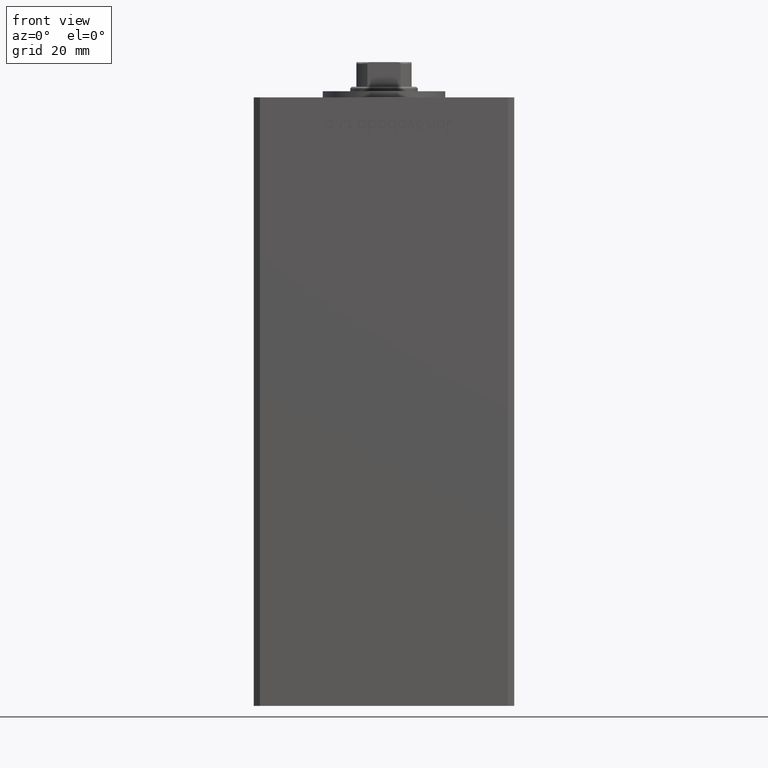
[diagram: clean part render]
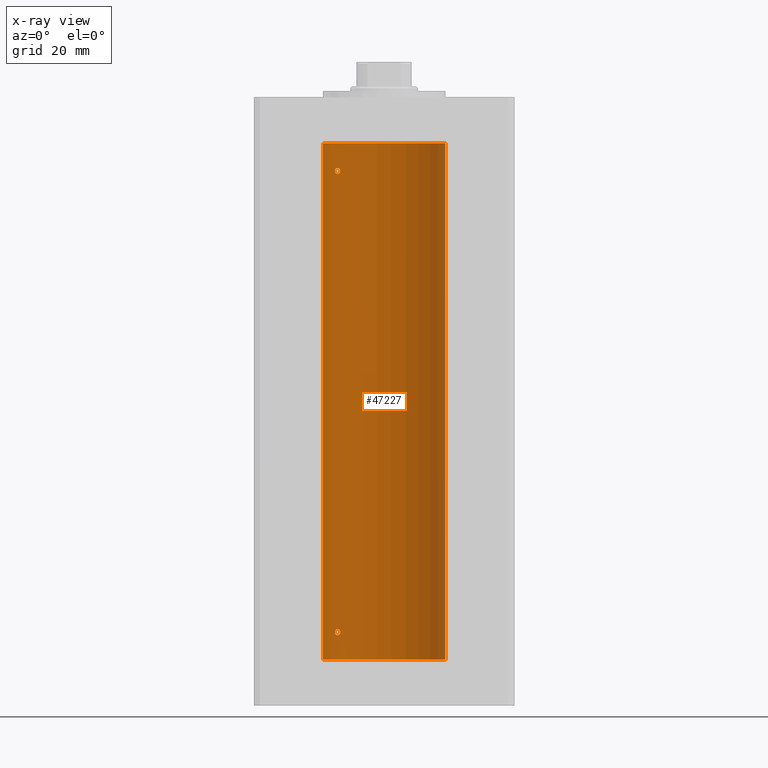
[diagram: x-ray — body ghosted, one internal face saturated and labeled with its STEP entity id]
A machine part, front view, then the same camera in x-ray: the body is ghosted and one INTERNAL B-rep face — a face not visible from any outside direction — is saturated and labeled: STEP entity #47227.
In plain terms, the highlighted cylindrical surface (partial cylindrical patch) has radius 20 mm, axis along (-0, -0, -1).
Its self-contained STEP definition (entity closure, byte-faithful):
#112 = CARTESIAN_POINT ( 'NONE',  ( -15.65267653428113093, 12.45028749062556450, 9.845491151963429388 ) ) ;
#373 = CARTESIAN_POINT ( 'NONE',  ( -14.98188199575990254, 13.25008090651449244, 9.975236402857756701 ) ) ;
#681 = CARTESIAN_POINT ( 'NONE',  ( -14.98166541227928583, 13.25033217142395792, 158.5247696149142485 ) ) ;
#940 = CARTESIAN_POINT ( 'NONE',  ( -15.08054978948642955, 13.13774395934156658, 158.5027765441529937 ) ) ;
#1132 = CARTESIAN_POINT ( 'NONE',  ( -15.99999999999999645, 12.00000000000000711, 159.5000000000000000 ) ) ;
#1636 = VERTEX_POINT ( 'NONE', #30014 ) ;
#2141 = CARTESIAN_POINT ( 'NONE',  ( -14.28285685708538111, 14.00000000000032685, 159.4999999999998579 ) ) ;
#2191 = DIRECTION ( 'NONE',  ( 1.000000000000000000, 0.000000000000000000, 0.000000000000000000 ) ) ;
#2585 = CARTESIAN_POINT ( 'NONE',  ( -15.99999999999999645, 12.00000000000000533, 9.000000000000001776 ) ) ;
#2831 = CARTESIAN_POINT ( 'NONE',  ( -14.43642497935765512, 13.84184969151371547, 8.442053335922926394 ) ) ;
#2962 = CARTESIAN_POINT ( 'NONE',  ( -15.99999999999999645, 12.00000000000001421, 159.6542407199935667 ) ) ;
#3091 = CARTESIAN_POINT ( 'NONE',  ( -14.28285685708537756, 14.00000000000032863, 8.999999999999852562 ) ) ;
#3220 = CARTESIAN_POINT ( 'NONE',  ( -15.65267653428112382, 12.45028749062557161, 160.3454911519634720 ) ) ;
#3563 = CARTESIAN_POINT ( 'NONE',  ( -16.00000000000000355, 12.00000000000000888, 9.154240719993492092 ) ) ;
#4396 = CARTESIAN_POINT ( 'NONE',  ( -15.57359523075762198, 12.55100654799543314, 158.5686142754107379 ) ) ;
#4440 = ORIENTED_EDGE ( 'NONE', *, *, #20283, .F. ) ;
#4608 = CARTESIAN_POINT ( 'NONE',  ( -14.28285685708573460, 14.00000000000003020, 9.152512609665841126 ) ) ;
#4656 = CARTESIAN_POINT ( 'NONE',  ( -15.37869471769012009, 12.79018928545119849, 158.4951659137117588 ) ) ;
#5198 = VERTEX_POINT ( 'NONE', #26572 ) ;
#5422 = CARTESIAN_POINT ( 'NONE',  ( -14.43642497935765512, 13.84184969151371902, 158.9420533359229353 ) ) ;
#6124 = CARTESIAN_POINT ( 'NONE',  ( -14.28285685708573105, 14.00000000000002487, 159.6525126096658767 ) ) ;
#6537 = B_SPLINE_CURVE_WITH_KNOTS ( 'NONE', 3,
 ( #2585, #34712, #50842, #14699, #39189, #35487, #30725, #18365, #11278, #6787, #46321, #22310, #2831, #27045, #34428, #3091 ),
 .UNSPECIFIED., .F., .F.,
 ( 4, 2, 2, 2, 2, 2, 2, 4 ),
 ( 1.734723475976807094E-18, 0.0004556152471946670057, 0.0009112304943893322767, 0.001822460988778654796, 0.002278076235973315947, 0.002733691483167977315, 0.003189306730362638249, 0.003644921977557299617 ),
 .UNSPECIFIED. ) ;
#6787 = CARTESIAN_POINT ( 'NONE',  ( -14.78531327857342781, 13.46907986586309569, 8.109099006911453245 ) ) ;
#7677 = B_SPLINE_CURVE_WITH_KNOTS ( 'NONE', 3,
 ( #31723, #4608, #27508, #20141, #32243, #27766, #20406, #43607, #36469, #373, #28034, #47840, #8290, #23565, #112, #8033, #43865, #40690, #3563, #48627 ),
 .UNSPECIFIED., .F., .F.,
 ( 4, 2, 2, 2, 2, 2, 2, 2, 2, 4 ),
 ( 0.003644921977557299617, 0.004100339128177156109, 0.004328047703487083488, 0.004555756278797011734, 0.005011173429416868226, 0.005466590580036723851, 0.005922007730656580343, 0.006377424881276436835, 0.006832842031896293328, 0.007288259182516148953 ),
 .UNSPECIFIED. ) ;
#8033 = CARTESIAN_POINT ( 'NONE',  ( -15.80861854366319719, 12.25167421322532491, 9.676052991901704203 ) ) ;
#8290 = CARTESIAN_POINT ( 'NONE',  ( -15.37869370082498044, 12.78737709343839057, 9.984378433483314552 ) ) ;
#8454 = CARTESIAN_POINT ( 'NONE',  ( 0.000000000000000000, 0.000000000000000000, 168.5000000000000000 ) ) ;
#8604 = CARTESIAN_POINT ( 'NONE',  ( -14.78531327857342781, 13.46907986586309747, 158.6090990069114923 ) ) ;
#8970 = DIRECTION ( 'NONE',  ( 1.000000000000000000, 0.000000000000000000, 0.000000000000000000 ) ) ;
#9314 = FACE_BOUND ( 'NONE', #35174, .T. ) ;
#9339 = ORIENTED_EDGE ( 'NONE', *, *, #42481, .T. ) ;
#9341 = DIRECTION ( 'NONE',  ( -0.000000000000000000, -0.000000000000000000, -1.000000000000000000 ) ) ;
#9431 = EDGE_CURVE ( 'NONE', #29808, #5198, #23545, .T. ) ;
#9841 = VECTOR ( 'NONE', #9341, 1000.000000000000000 ) ;
#11149 = CARTESIAN_POINT ( 'NONE',  ( -14.28285685708537756, 14.00000000000032863, 8.999999999999852562 ) ) ;
#11278 = CARTESIAN_POINT ( 'NONE',  ( -14.98166541227929116, 13.25033217142396325, 8.024769614914273319 ) ) ;
#11411 = CARTESIAN_POINT ( 'NONE',  ( -15.97258576326347779, 12.03672672663915044, 159.8051374092137564 ) ) ;
#12371 = B_SPLINE_CURVE_WITH_KNOTS ( 'NONE', 3,
 ( #44708, #32553, #28854, #16505, #17271, #4396, #4656, #940, #681, #8604, #17021, #44971, #5422, #36770, #20706, #16762 ),
 .UNSPECIFIED., .F., .F.,
 ( 4, 2, 2, 2, 2, 2, 2, 4 ),
 ( 0.000000000000000000, 0.0004556152471946793114, 0.0009112304943893586228, 0.001822460988778669107, 0.002278076235973324620, 0.002733691483167979483, 0.003189306730362634346, 0.003644921977557289642 ),
 .UNSPECIFIED. ) ;
#12459 = CIRCLE ( 'NONE', #17513, 20.00000000000000000 ) ;
#12766 = FACE_OUTER_BOUND ( 'NONE', #39462, .T. ) ;
#13648 = EDGE_CURVE ( 'NONE', #38828, #21923, #14322, .T. ) ;
#14322 = B_SPLINE_CURVE_WITH_KNOTS ( 'NONE', 3,
 ( #26390, #6124, #42482, #25362, #33523, #38786, #31124, #23230, #30858, #15339, #31395, #46978, #19023, #39314, #3220, #35618, #39058, #11411, #2962, #14807 ),
 .UNSPECIFIED., .F., .F.,
 ( 4, 2, 2, 2, 2, 2, 2, 2, 2, 4 ),
 ( 0.003644921977557289642, 0.004100339128177102332, 0.004328047703487008027, 0.004555756278796913722, 0.005011173429416777153, 0.005466590580036640584, 0.005922007730656504015, 0.006377424881276367447, 0.006832842031896230010, 0.007288259182516093442 ),
 .UNSPECIFIED. ) ;
#14699 = CARTESIAN_POINT ( 'NONE',  ( -15.87710824431566614, 12.16238752415382152, 8.434921807322277587 ) ) ;
#14807 = CARTESIAN_POINT ( 'NONE',  ( -15.99999999999999645, 12.00000000000000711, 159.5000000000000000 ) ) ;
#15339 = CARTESIAN_POINT ( 'NONE',  ( -14.98188199575990431, 13.25008090651448001, 160.4752364028577176 ) ) ;
#16505 = CARTESIAN_POINT ( 'NONE',  ( -15.87710824431565904, 12.16238752415382507, 158.9349218073222403 ) ) ;
#16762 = CARTESIAN_POINT ( 'NONE',  ( -14.28285685708538111, 14.00000000000032685, 159.4999999999998579 ) ) ;
#17021 = CARTESIAN_POINT ( 'NONE',  ( -14.69070843596622744, 13.57200975233015683, 158.6702647380768099 ) ) ;
#17271 = CARTESIAN_POINT ( 'NONE',  ( -15.80909732170550441, 12.25106527276996360, 158.8244517809014269 ) ) ;
#17476 = CARTESIAN_POINT ( 'NONE',  ( 0.000000000000000000, 0.000000000000000000, 168.5000000000000000 ) ) ;
#17513 = AXIS2_PLACEMENT_3D ( 'NONE', #45256, #32332, #2191 ) ;
#17835 = ORIENTED_EDGE ( 'NONE', *, *, #13648, .F. ) ;
#18365 = CARTESIAN_POINT ( 'NONE',  ( -15.08054978948644198, 13.13774395934156836, 8.002776544152998994 ) ) ;
#18708 = EDGE_CURVE ( 'NONE', #39211, #44628, #6537, .T. ) ;
#18977 = DIRECTION ( 'NONE',  ( -0.000000000000000000, -0.000000000000000000, -1.000000000000000000 ) ) ;
#19023 = CARTESIAN_POINT ( 'NONE',  ( -15.37869370082499287, 12.78737709343838880, 160.4843784334833003 ) ) ;
#19492 = VECTOR ( 'NONE', #18977, 1000.000000000000000 ) ;
#19553 = ORIENTED_EDGE ( 'NONE', *, *, #18708, .F. ) ;
#19642 = ORIENTED_EDGE ( 'NONE', *, *, #43387, .F. ) ;
#20141 = CARTESIAN_POINT ( 'NONE',  ( -14.40763032799400989, 13.87162499441319952, 9.495217475255243400 ) ) ;
#20283 = EDGE_CURVE ( 'NONE', #29808, #1636, #21878, .T. ) ;
#20406 = CARTESIAN_POINT ( 'NONE',  ( -14.56006338825494772, 13.71162570780885126, 9.705357955363313138 ) ) ;
#20706 = CARTESIAN_POINT ( 'NONE',  ( -14.28285685708575770, 14.00000000000000355, 159.3474210506593920 ) ) ;
#20908 = DIRECTION ( 'NONE',  ( -0.000000000000000000, -0.000000000000000000, -1.000000000000000000 ) ) ;
#21878 = LINE ( 'NONE', #42172, #19492 ) ;
#21923 = VERTEX_POINT ( 'NONE', #1132 ) ;
#22088 = CARTESIAN_POINT ( 'NONE',  ( -20.00000000000000000, 0.000000000000000000, 0.000000000000000000 ) ) ;
#22169 = CARTESIAN_POINT ( 'NONE',  ( 20.00000000000000000, 2.449293598294706513E-15, 168.5000000000000000 ) ) ;
#22310 = CARTESIAN_POINT ( 'NONE',  ( -14.51590294503183820, 13.75881262167379049, 8.336781207422363948 ) ) ;
#23230 = CARTESIAN_POINT ( 'NONE',  ( -14.69171503997127459, 13.57092520311232065, 160.3305470397793044 ) ) ;
#23545 = CIRCLE ( 'NONE', #35321, 20.00000000000000000 ) ;
#23565 = CARTESIAN_POINT ( 'NONE',  ( -15.56338254739985594, 12.56194079578775202, 9.906815049669283724 ) ) ;
#24365 = ORIENTED_EDGE ( 'NONE', *, *, #49685, .F. ) ;
#24513 = DIRECTION ( 'NONE',  ( -0.000000000000000000, 0.000000000000000000, 1.000000000000000000 ) ) ;
#25362 = CARTESIAN_POINT ( 'NONE',  ( -14.40763032799401877, 13.87162499441318886, 159.9952174752552878 ) ) ;
#26390 = CARTESIAN_POINT ( 'NONE',  ( -14.28285685708538111, 14.00000000000032685, 159.4999999999998579 ) ) ;
#26572 = CARTESIAN_POINT ( 'NONE',  ( -20.00000000000000000, 0.000000000000000000, 168.5000000000000000 ) ) ;
#27045 = CARTESIAN_POINT ( 'NONE',  ( -14.31871019372461795, 13.96358505023715679, 8.697478539577890189 ) ) ;
#27508 = CARTESIAN_POINT ( 'NONE',  ( -14.31936354392034616, 13.96291496472316496, 9.304428457027322352 ) ) ;
#27766 = CARTESIAN_POINT ( 'NONE',  ( -14.51882058315760027, 13.75524947942078313, 9.658734659218600527 ) ) ;
#28034 = CARTESIAN_POINT ( 'NONE',  ( -15.08229700616151270, 13.13572892147766247, 9.997430752714780766 ) ) ;
#28854 = CARTESIAN_POINT ( 'NONE',  ( -15.97265980134107366, 12.03662641108512332, 159.1953373148639059 ) ) ;
#29308 = FACE_BOUND ( 'NONE', #39750, .T. ) ;
#29808 = VERTEX_POINT ( 'NONE', #22169 ) ;
#30014 = CARTESIAN_POINT ( 'NONE',  ( 20.00000000000000000, 2.449293598294706513E-15, 0.000000000000000000 ) ) ;
#30725 = CARTESIAN_POINT ( 'NONE',  ( -15.37869471769012897, 12.79018928545119671, 7.995165913711804073 ) ) ;
#30858 = CARTESIAN_POINT ( 'NONE',  ( -14.78630942130979697, 13.46798002156743301, 160.3914152795839811 ) ) ;
#31124 = CARTESIAN_POINT ( 'NONE',  ( -14.56006338825494950, 13.71162570780885304, 160.2053579553632972 ) ) ;
#31395 = CARTESIAN_POINT ( 'NONE',  ( -15.08229700616151625, 13.13572892147764470, 160.4974307527147630 ) ) ;
#31723 = CARTESIAN_POINT ( 'NONE',  ( -14.28285685708537756, 14.00000000000032863, 8.999999999999852562 ) ) ;
#32243 = CARTESIAN_POINT ( 'NONE',  ( -14.44276720520014123, 13.83508275448403957, 9.554048662650277635 ) ) ;
#32332 = DIRECTION ( 'NONE',  ( -0.000000000000000000, 0.000000000000000000, 1.000000000000000000 ) ) ;
#32553 = CARTESIAN_POINT ( 'NONE',  ( -15.99999999999999645, 12.00000000000001243, 159.3456921886414648 ) ) ;
#33523 = CARTESIAN_POINT ( 'NONE',  ( -14.44276720520014123, 13.83508275448404135, 160.0540486626502741 ) ) ;
#34428 = CARTESIAN_POINT ( 'NONE',  ( -14.28285685708575414, 14.00000000000000000, 8.847421050659345809 ) ) ;
#34712 = CARTESIAN_POINT ( 'NONE',  ( -16.00000000000000355, 12.00000000000000711, 8.845692188641406162 ) ) ;
#35174 = EDGE_LOOP ( 'NONE', ( #19553, #48188 ) ) ;
#35321 = AXIS2_PLACEMENT_3D ( 'NONE', #8454, #24513, #8970 ) ;
#35487 = CARTESIAN_POINT ( 'NONE',  ( -15.57359523075763086, 12.55100654799543136, 8.068614275410753933 ) ) ;
#35618 = CARTESIAN_POINT ( 'NONE',  ( -15.80861854366319363, 12.25167421322532491, 160.1760529919016847 ) ) ;
#36469 = CARTESIAN_POINT ( 'NONE',  ( -14.78630942130979342, 13.46798002156744545, 9.891415279583977593 ) ) ;
#36770 = CARTESIAN_POINT ( 'NONE',  ( -14.31871019372461618, 13.96358505023716567, 159.1974785395779293 ) ) ;
#37262 = CARTESIAN_POINT ( 'NONE',  ( -20.00000000000000000, 0.000000000000000000, 168.5000000000000000 ) ) ;
#37756 = CYLINDRICAL_SURFACE ( 'NONE', #42672, 20.00000000000000000 ) ;
#38786 = CARTESIAN_POINT ( 'NONE',  ( -14.51882058315760027, 13.75524947942078136, 160.1587346592185668 ) ) ;
#38828 = VERTEX_POINT ( 'NONE', #2141 ) ;
#38894 = CARTESIAN_POINT ( 'NONE',  ( -15.99999999999999645, 12.00000000000000533, 9.000000000000001776 ) ) ;
#39058 = CARTESIAN_POINT ( 'NONE',  ( -15.87665094074984573, 12.16298652314402240, 160.0660500660139860 ) ) ;
#39189 = CARTESIAN_POINT ( 'NONE',  ( -15.80909732170550441, 12.25106527276995649, 8.324451780901405584 ) ) ;
#39211 = VERTEX_POINT ( 'NONE', #38894 ) ;
#39314 = CARTESIAN_POINT ( 'NONE',  ( -15.56338254739985949, 12.56194079578774847, 160.4068150496692908 ) ) ;
#39462 = EDGE_LOOP ( 'NONE', ( #4440, #51497, #9339, #24365 ) ) ;
#39750 = EDGE_LOOP ( 'NONE', ( #19642, #17835 ) ) ;
#40690 = CARTESIAN_POINT ( 'NONE',  ( -15.97258576326346713, 12.03672672663914689, 9.305137409213726229 ) ) ;
#41972 = DIRECTION ( 'NONE',  ( -1.000000000000000000, 0.000000000000000000, 0.000000000000000000 ) ) ;
#42172 = CARTESIAN_POINT ( 'NONE',  ( 20.00000000000000000, 2.449293598294706513E-15, 168.5000000000000000 ) ) ;
#42481 = EDGE_CURVE ( 'NONE', #5198, #50333, #45455, .T. ) ;
#42482 = CARTESIAN_POINT ( 'NONE',  ( -14.31936354392034971, 13.96291496472316140, 159.8044284570273703 ) ) ;
#42672 = AXIS2_PLACEMENT_3D ( 'NONE', #17476, #20908, #41972 ) ;
#43387 = EDGE_CURVE ( 'NONE', #21923, #38828, #12371, .T. ) ;
#43607 = CARTESIAN_POINT ( 'NONE',  ( -14.69171503997126571, 13.57092520311232420, 9.830547039779306218 ) ) ;
#43865 = CARTESIAN_POINT ( 'NONE',  ( -15.87665094074984928, 12.16298652314402950, 9.566050066014014419 ) ) ;
#44628 = VERTEX_POINT ( 'NONE', #11149 ) ;
#44708 = CARTESIAN_POINT ( 'NONE',  ( -15.99999999999999645, 12.00000000000000711, 159.5000000000000000 ) ) ;
#44971 = CARTESIAN_POINT ( 'NONE',  ( -14.51590294503183109, 13.75881262167379404, 158.8367812074224332 ) ) ;
#45256 = CARTESIAN_POINT ( 'NONE',  ( 0.000000000000000000, 0.000000000000000000, 0.000000000000000000 ) ) ;
#45455 = LINE ( 'NONE', #37262, #9841 ) ;
#46321 = CARTESIAN_POINT ( 'NONE',  ( -14.69070843596623099, 13.57200975233014972, 8.170264738076779665 ) ) ;
#46978 = CARTESIAN_POINT ( 'NONE',  ( -15.28000793038419403, 12.90520882930644042, 160.5021502285312351 ) ) ;
#47166 = EDGE_CURVE ( 'NONE', #44628, #39211, #7677, .T. ) ;
#47227 = ADVANCED_FACE ( 'NONE', ( #12766, #9314, #29308 ), #37756, .F. ) ;
#47840 = CARTESIAN_POINT ( 'NONE',  ( -15.28000793038418870, 12.90520882930645108, 10.00215022853122981 ) ) ;
#48188 = ORIENTED_EDGE ( 'NONE', *, *, #47166, .F. ) ;
#48627 = CARTESIAN_POINT ( 'NONE',  ( -15.99999999999999645, 12.00000000000000533, 9.000000000000001776 ) ) ;
#49685 = EDGE_CURVE ( 'NONE', #1636, #50333, #12459, .T. ) ;
#50333 = VERTEX_POINT ( 'NONE', #22088 ) ;
#50842 = CARTESIAN_POINT ( 'NONE',  ( -15.97265980134107721, 12.03662641108511977, 8.695337314863895273 ) ) ;
#51497 = ORIENTED_EDGE ( 'NONE', *, *, #9431, .T. ) ;